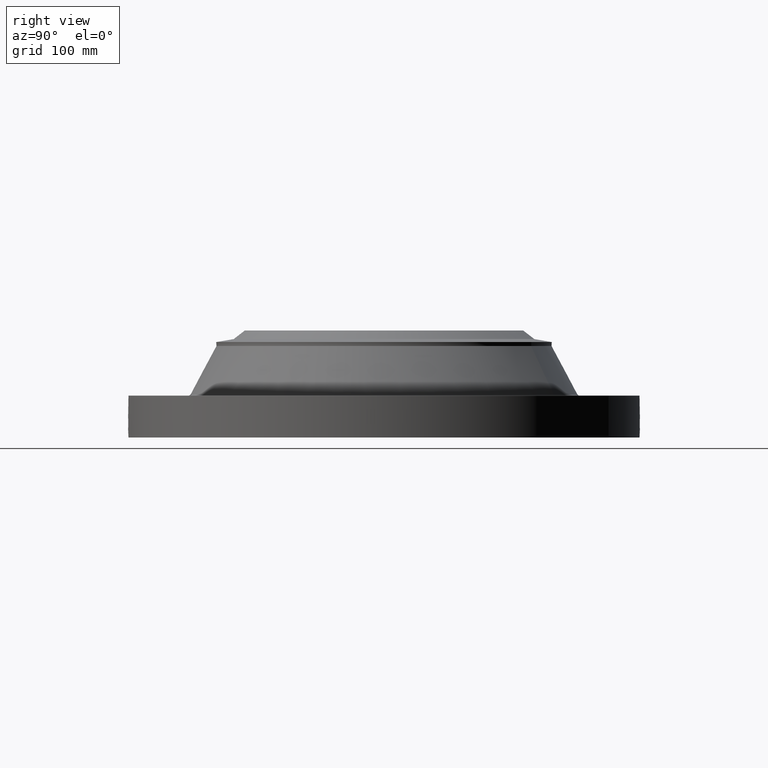
[diagram: clean part render]
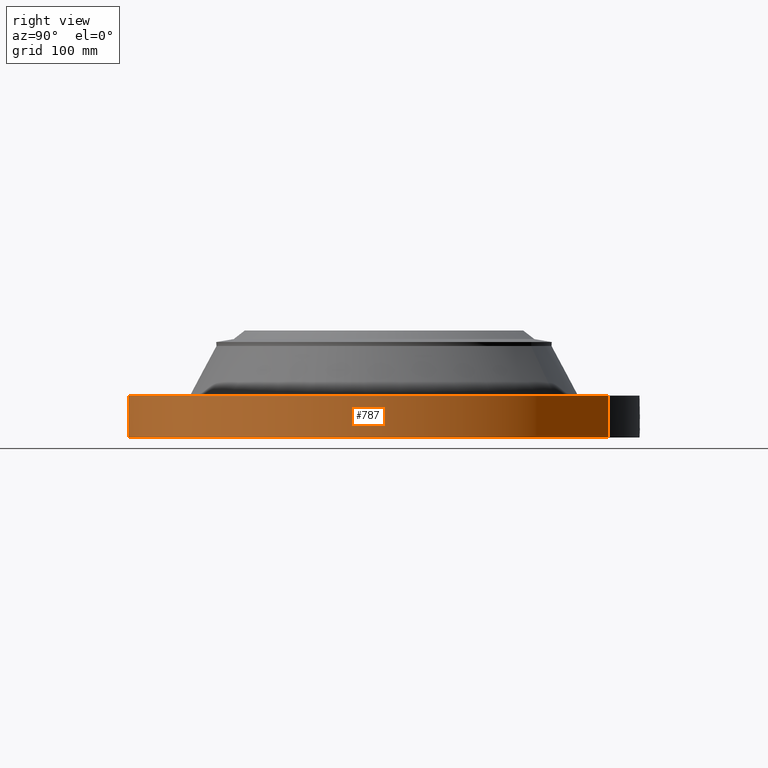
[diagram: same view with one face highlighted and labeled with its STEP entity id]
A machine part, right view. The second image highlights one B-rep face of the part: STEP entity #787.
In plain terms, the highlighted cylindrical surface (partial cylindrical patch) has radius 387.35 mm, axis along (0, 0, -1).
Its self-contained STEP definition (entity closure, byte-faithful):
#38=AXIS2_PLACEMENT_3D('Cylinder Axis2P3D',#35,#36,#37) ;
#169=AXIS2_PLACEMENT_3D('Circle Axis2P3D',#167,#168,$) ;
#691=AXIS2_PLACEMENT_3D('Circle Axis2P3D',#689,#690,$) ;
#35=CARTESIAN_POINT('Axis2P3D Location',(0.,0.,3.25000000001)) ;
#44=CARTESIAN_POINT('Vertex',(-7.31123946374,-13.3831340689,0.0600000000002)) ;
#46=CARTESIAN_POINT('Vertex',(7.31123946374,13.3831340689,0.0600000000002)) ;
#49=CARTESIAN_POINT('Line Origine',(-7.31123946374,-13.3831340689,1.31000000001)) ;
#53=CARTESIAN_POINT('Vertex',(-7.31123946374,-13.3831340689,2.56000000001)) ;
#60=CARTESIAN_POINT('Vertex',(7.31123946374,13.3831340689,2.56000000001)) ;
#63=CARTESIAN_POINT('Line Origine',(7.31123946374,13.3831340689,1.31000000001)) ;
#167=CARTESIAN_POINT('Axis2P3D Location',(0.,0.,0.0600000000002)) ;
#689=CARTESIAN_POINT('Axis2P3D Location',(0.,0.,2.56000000001)) ;
#701=CARTESIAN_POINT('Control Point',(0.000716049766516,-15.2499999833,1.29411846129)) ;
#702=CARTESIAN_POINT('Control Point',(0.0189701072574,-15.2499991261,1.29408159437)) ;
#703=CARTESIAN_POINT('Control Point',(0.0372209751336,-15.2499652355,1.29262936671)) ;
#704=CARTESIAN_POINT('Control Point',(0.055250939965,-15.2498999123,1.28977927812)) ;
#705=CARTESIAN_POINT('Vertex',(0.000715697200082,-15.2499999833,1.29411851055)) ;
#707=CARTESIAN_POINT('Vertex',(0.055242138106,-15.2499001965,1.28978068759)) ;
#711=CARTESIAN_POINT('Control Point',(0.0552420427631,-15.2498999445,1.28978014022)) ;
#712=CARTESIAN_POINT('Control Point',(0.0956981569457,-15.2497533942,1.28536268072)) ;
#713=CARTESIAN_POINT('Control Point',(0.135516524693,-15.2494419834,1.27358724127)) ;
#714=CARTESIAN_POINT('Control Point',(0.172195687342,-15.2490277935,1.25523274047)) ;
#715=CARTESIAN_POINT('Vertex',(0.172195687342,-15.2490277935,1.25523274047)) ;
#719=CARTESIAN_POINT('Control Point',(0.0310152642592,-15.2499684608,0.53118928844)) ;
#720=CARTESIAN_POINT('Control Point',(0.0961823380398,-15.2498359245,0.539436739135)) ;
#721=CARTESIAN_POINT('Control Point',(0.159294043543,-15.2493594722,0.561293751317)) ;
#722=CARTESIAN_POINT('Control Point',(0.216401137039,-15.2485887094,0.596098828626)) ;
#723=CARTESIAN_POINT('Control Point',(0.288819771716,-15.2473275345,0.664189974988)) ;
#724=CARTESIAN_POINT('Control Point',(0.3364283929,-15.2462994751,0.74867146955)) ;
#725=CARTESIAN_POINT('Control Point',(0.349472606087,-15.2460004619,0.778732970493)) ;
#726=CARTESIAN_POINT('Control Point',(0.371687708457,-15.2454753168,0.848970818043)) ;
#727=CARTESIAN_POINT('Control Point',(0.377175372896,-15.2453335918,0.92214120378)) ;
#728=CARTESIAN_POINT('Control Point',(0.374910288462,-15.2453911791,0.962947952556)) ;
#729=CARTESIAN_POINT('Control Point',(0.356496036602,-15.245851249,1.06072433247)) ;
#730=CARTESIAN_POINT('Control Point',(0.30813679188,-15.2469313731,1.1479432579)) ;
#731=CARTESIAN_POINT('Control Point',(0.269818079789,-15.2477093271,1.19323963338)) ;
#732=CARTESIAN_POINT('Control Point',(0.223535778782,-15.2484480489,1.22954180689)) ;
#733=CARTESIAN_POINT('Control Point',(0.172195687342,-15.2490277935,1.25523274047)) ;
#734=CARTESIAN_POINT('Vertex',(0.0310152642592,-15.2499684608,0.53118928844)) ;
#738=CARTESIAN_POINT('Control Point',(0.0310152642592,-15.2499684608,0.53118928844)) ;
#739=CARTESIAN_POINT('Control Point',(0.0206719752859,-15.2499894969,0.53087456983)) ;
#740=CARTESIAN_POINT('Control Point',(0.0103211166376,-15.2500000019,0.530936539703)) ;
#741=CARTESIAN_POINT('Control Point',(-2.72878354802E-006,-15.2500000001,0.531374667806)) ;
#742=CARTESIAN_POINT('Vertex',(-2.72878354471E-006,-15.2500000001,0.531374667806)) ;
#746=CARTESIAN_POINT('Control Point',(-0.192625061438,-15.2487834134,0.58741326924)) ;
#747=CARTESIAN_POINT('Control Point',(-0.149005457565,-15.2493344231,0.562040395763)) ;
#748=CARTESIAN_POINT('Control Point',(-0.101116386699,-15.2497737091,0.543779824758)) ;
#749=CARTESIAN_POINT('Control Point',(-0.0508056148379,-15.249999991,0.533530663288)) ;
#750=CARTESIAN_POINT('Control Point',(-2.72878352093E-006,-15.2500000001,0.531374667806)) ;
#751=CARTESIAN_POINT('Vertex',(-0.192625061438,-15.2487834134,0.58741326924)) ;
#755=CARTESIAN_POINT('Control Point',(-0.192625061438,-15.2487834134,0.58741326924)) ;
#756=CARTESIAN_POINT('Control Point',(-0.249453783228,-15.2480655439,0.620469689011)) ;
#757=CARTESIAN_POINT('Control Point',(-0.299509163555,-15.2471684596,0.664842822417)) ;
#758=CARTESIAN_POINT('Control Point',(-0.339645810452,-15.2462572537,0.718973028947)) ;
#759=CARTESIAN_POINT('Control Point',(-0.383846820938,-15.2451782415,0.817171323303)) ;
#760=CARTESIAN_POINT('Control Point',(-0.392394948556,-15.2449495023,0.922456432645)) ;
#761=CARTESIAN_POINT('Control Point',(-0.390268294812,-15.2450057477,0.962621078166)) ;
#762=CARTESIAN_POINT('Control Point',(-0.37609524424,-15.2453740937,1.03752589676)) ;
#763=CARTESIAN_POINT('Control Point',(-0.343961436303,-15.2461332323,1.10595638767)) ;
#764=CARTESIAN_POINT('Control Point',(-0.32488451956,-15.2465612243,1.13637813138)) ;
#765=CARTESIAN_POINT('Control Point',(-0.263167036732,-15.2478271655,1.21273609869)) ;
#766=CARTESIAN_POINT('Control Point',(-0.180082080078,-15.2490857223,1.26567044337)) ;
#767=CARTESIAN_POINT('Control Point',(-0.1213550095,-15.2497029237,1.28768574766)) ;
#768=CARTESIAN_POINT('Control Point',(-0.0601974085843,-15.2500001022,1.29710564982)) ;
#769=CARTESIAN_POINT('Control Point',(2.58579355455E-005,-15.25,1.2941529843)) ;
#770=CARTESIAN_POINT('Vertex',(2.58579355472E-005,-15.25,1.2941529843)) ;
#774=CARTESIAN_POINT('Control Point',(0.000715697190474,-15.2499999833,1.29411851054)) ;
#775=CARTESIAN_POINT('Control Point',(0.00037080210737,-15.2499999995,1.29413607216)) ;
#776=CARTESIAN_POINT('Control Point',(2.58579405796E-005,-15.25,1.2941529843)) ;
#36=DIRECTION('Axis2P3D Direction',(0.,0.,-0.0393700787402)) ;
#37=DIRECTION('Axis2P3D XDirection',(0.0188750212049,0.0345504945626,0.)) ;
#50=DIRECTION('Vector Direction',(0.,0.,-0.0393700787402)) ;
#64=DIRECTION('Vector Direction',(0.,0.,-0.0393700787402)) ;
#168=DIRECTION('Axis2P3D Direction',(0.,0.,-0.0393700787402)) ;
#690=DIRECTION('Axis2P3D Direction',(0.,0.,-0.0393700787402)) ;
#51=VECTOR('Line Direction',#50,0.0393700787402) ;
#65=VECTOR('Line Direction',#64,0.0393700787402) ;
#695=ORIENTED_EDGE('',*,*,#171,.F.) ;
#696=ORIENTED_EDGE('',*,*,#67,.T.) ;
#697=ORIENTED_EDGE('',*,*,#693,.T.) ;
#698=ORIENTED_EDGE('',*,*,#55,.F.) ;
#779=ORIENTED_EDGE('',*,*,#709,.T.) ;
#780=ORIENTED_EDGE('',*,*,#717,.T.) ;
#781=ORIENTED_EDGE('',*,*,#736,.F.) ;
#782=ORIENTED_EDGE('',*,*,#744,.T.) ;
#783=ORIENTED_EDGE('',*,*,#753,.F.) ;
#784=ORIENTED_EDGE('',*,*,#772,.T.) ;
#785=ORIENTED_EDGE('',*,*,#777,.F.) ;
#786=FACE_BOUND('',#778,.T.) ;
#787=ADVANCED_FACE('PartBody',(#699,#786),#39,.T.) ;
#700=B_SPLINE_CURVE_WITH_KNOTS('',3,(#701,#702,#703,#704),.UNSPECIFIED.,.F.,.U.,(4,4),(34.6166020319,36.6417164456),.UNSPECIFIED.) ;
#710=B_SPLINE_CURVE_WITH_KNOTS('',3,(#711,#712,#713,#714),.UNSPECIFIED.,.F.,.U.,(4,4),(0.,4.57283024561),.UNSPECIFIED.) ;
#718=B_SPLINE_CURVE_WITH_KNOTS('',5,(#719,#720,#721,#722,#723,#724,#725,#726,#727,#728,#729,#730,#731,#732,#733),.UNSPECIFIED.,.F.,.U.,(6,3,3,3,6),(0.,11.4156301247,17.2563856256,24.6134498867,35.2811566963),.UNSPECIFIED.) ;
#737=B_SPLINE_CURVE_WITH_KNOTS('',3,(#738,#739,#740,#741),.UNSPECIFIED.,.F.,.U.,(4,4),(0.,1.07896259327),.UNSPECIFIED.) ;
#745=B_SPLINE_CURVE_WITH_KNOTS('',4,(#746,#747,#748,#749,#750),.UNSPECIFIED.,.F.,.U.,(5,5),(0.,7.07932769735),.UNSPECIFIED.) ;
#754=B_SPLINE_CURVE_WITH_KNOTS('',5,(#755,#756,#757,#758,#759,#760,#761,#762,#763,#764,#765,#766,#767,#768,#769),.UNSPECIFIED.,.F.,.U.,(6,3,3,3,6),(0.,11.5289086227,18.6079826553,25.029991737,36.2869702306),.UNSPECIFIED.) ;
#773=B_SPLINE_CURVE_WITH_KNOTS('',2,(#774,#775,#776),.UNSPECIFIED.,.F.,.U.,(3,3),(1.021811413,1.04760230385),.UNSPECIFIED.) ;
#170=CIRCLE('generated circle',#169,15.2500000001) ;
#692=CIRCLE('generated circle',#691,15.2500000001) ;
#39=CYLINDRICAL_SURFACE('generated cylinder',#38,15.2500000001) ;
#55=EDGE_CURVE('',#45,#54,#52,.F.) ;
#67=EDGE_CURVE('',#47,#61,#66,.F.) ;
#171=EDGE_CURVE('',#47,#45,#170,.T.) ;
#693=EDGE_CURVE('',#61,#54,#692,.T.) ;
#709=EDGE_CURVE('',#706,#708,#700,.T.) ;
#717=EDGE_CURVE('',#708,#716,#710,.T.) ;
#736=EDGE_CURVE('',#735,#716,#718,.T.) ;
#744=EDGE_CURVE('',#735,#743,#737,.T.) ;
#753=EDGE_CURVE('',#752,#743,#745,.T.) ;
#772=EDGE_CURVE('',#752,#771,#754,.T.) ;
#777=EDGE_CURVE('',#706,#771,#773,.T.) ;
#694=EDGE_LOOP('',(#695,#696,#697,#698)) ;
#778=EDGE_LOOP('',(#779,#780,#781,#782,#783,#784,#785)) ;
#699=FACE_OUTER_BOUND('',#694,.T.) ;
#52=LINE('Line',#49,#51) ;
#66=LINE('Line',#63,#65) ;
#45=VERTEX_POINT('',#44) ;
#47=VERTEX_POINT('',#46) ;
#54=VERTEX_POINT('',#53) ;
#61=VERTEX_POINT('',#60) ;
#706=VERTEX_POINT('',#705) ;
#708=VERTEX_POINT('',#707) ;
#716=VERTEX_POINT('',#715) ;
#735=VERTEX_POINT('',#734) ;
#743=VERTEX_POINT('',#742) ;
#752=VERTEX_POINT('',#751) ;
#771=VERTEX_POINT('',#770) ;